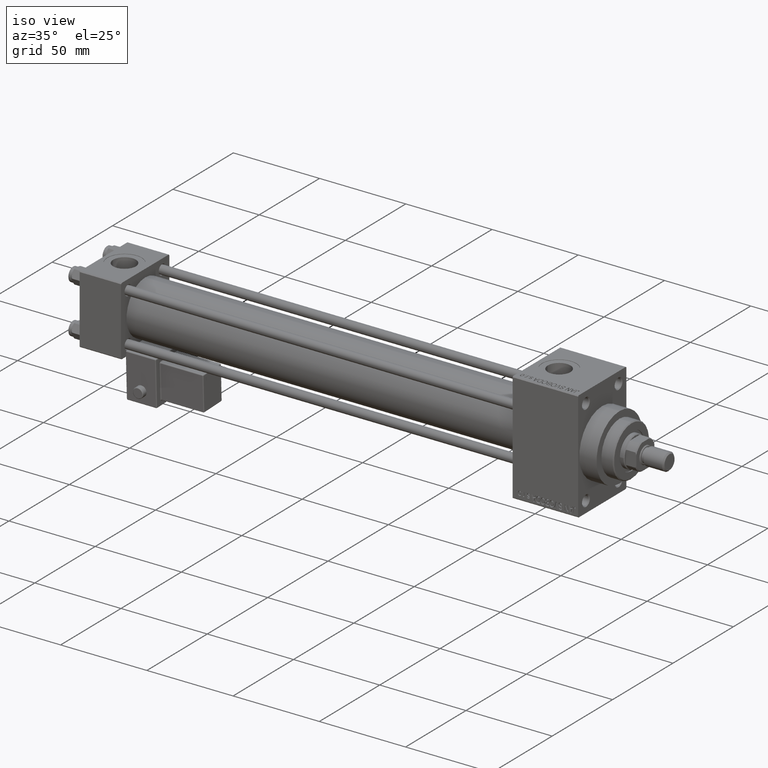
[diagram: clean part render]
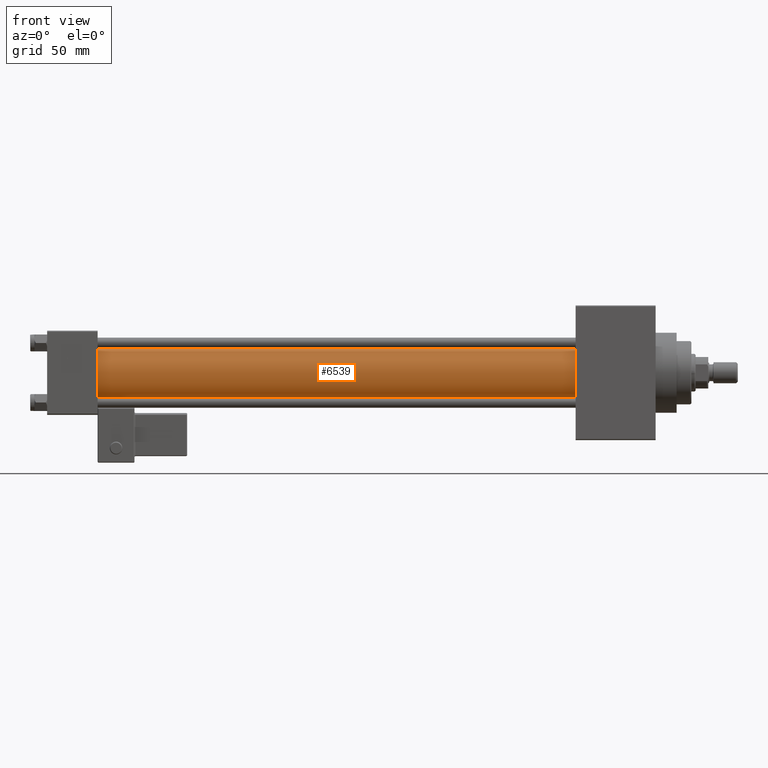
[diagram: tour spotlight — one face highlighted and labeled with its STEP entity id]
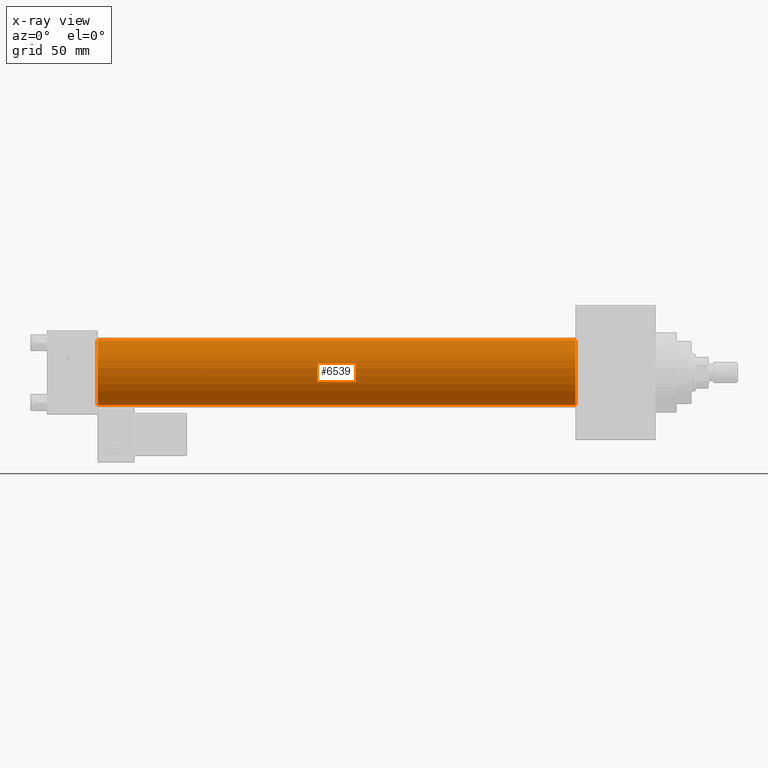
[diagram: x-ray of the same camera — body ghosted, this tour face saturated]
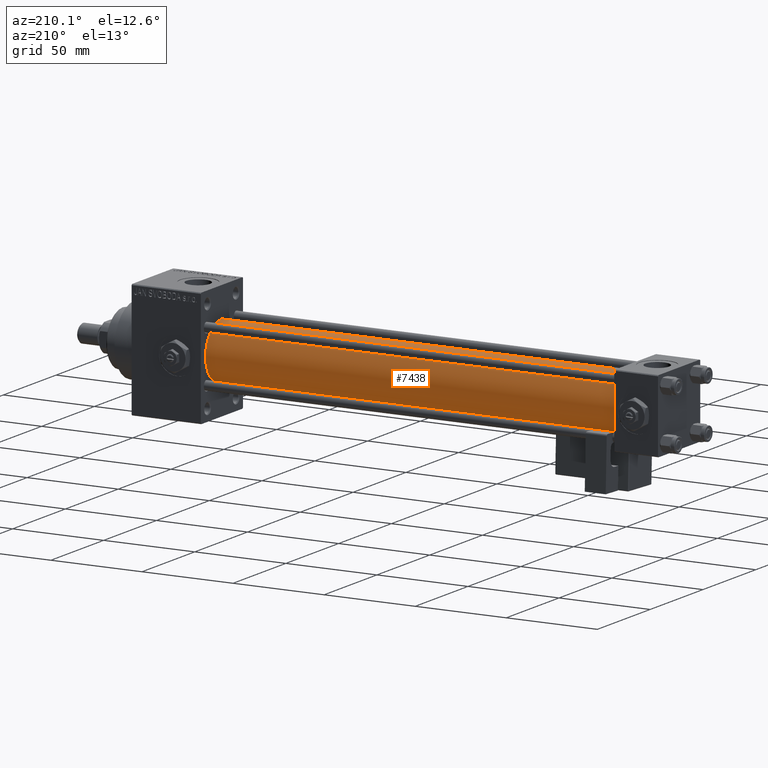
[diagram: tour spotlight — one face highlighted and labeled with its STEP entity id]
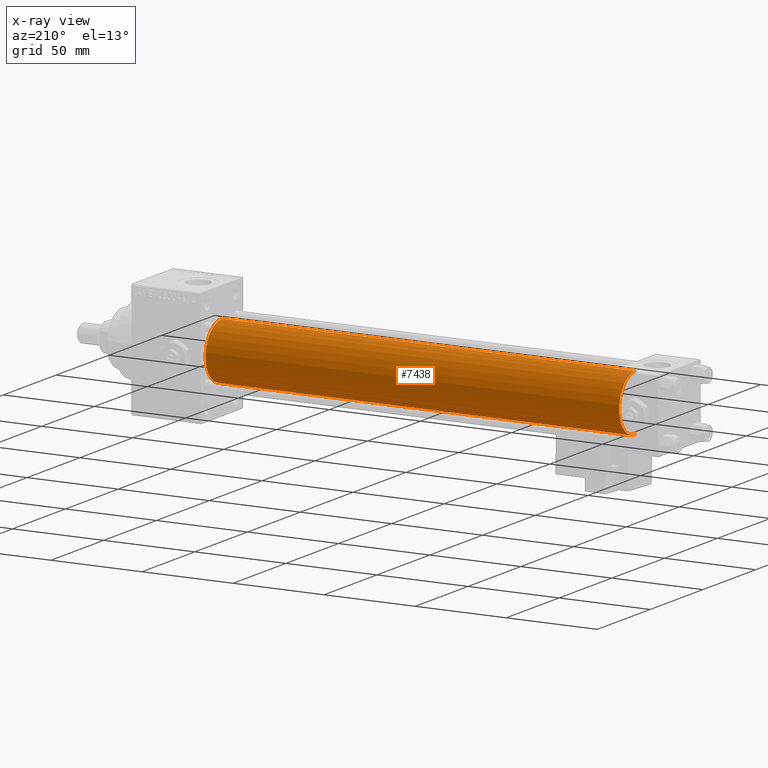
[diagram: x-ray of the same camera — body ghosted, this tour face saturated]
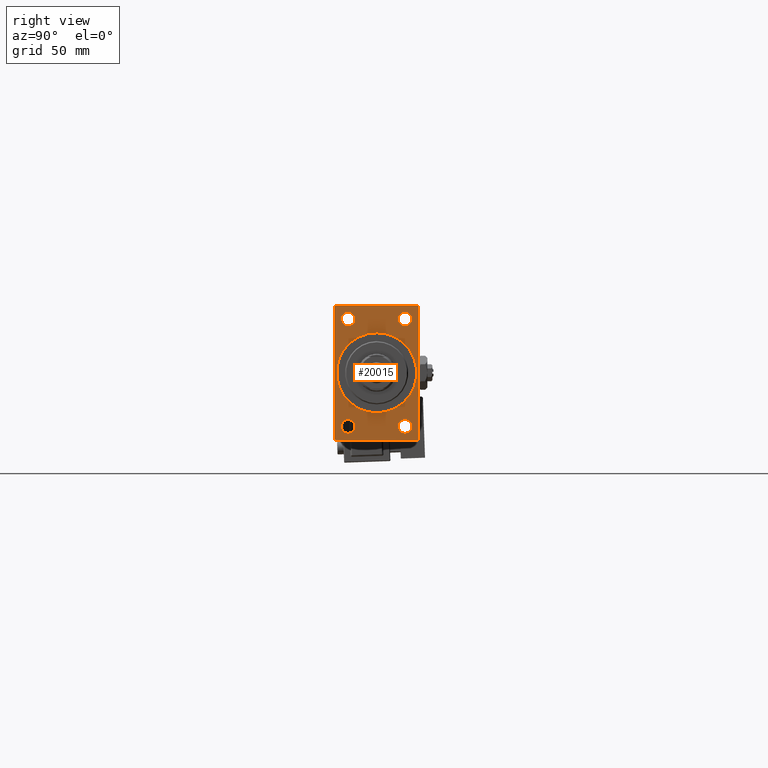
[diagram: tour spotlight — one face highlighted and labeled with its STEP entity id]
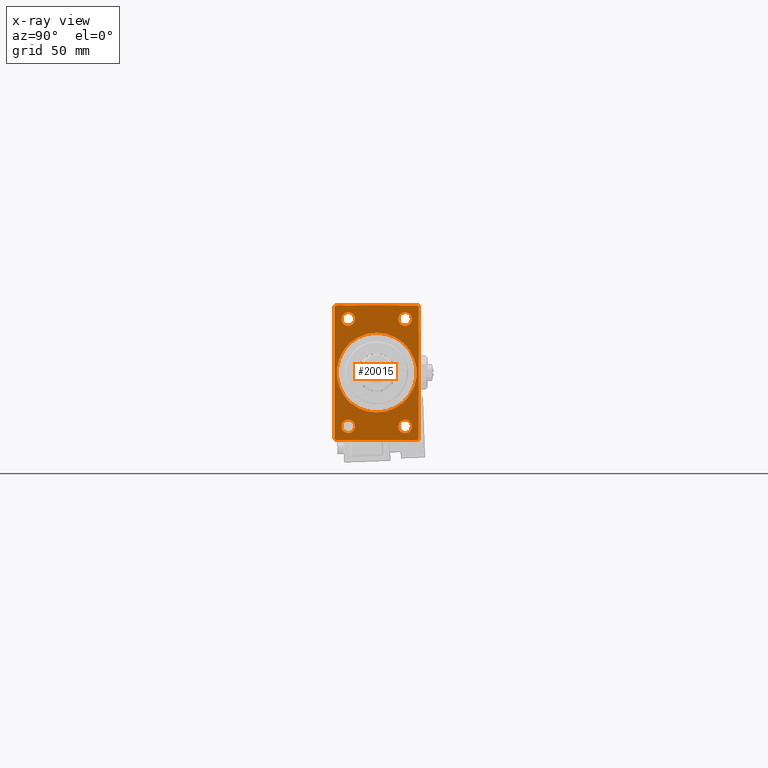
[diagram: x-ray of the same camera — body ghosted, this tour face saturated]
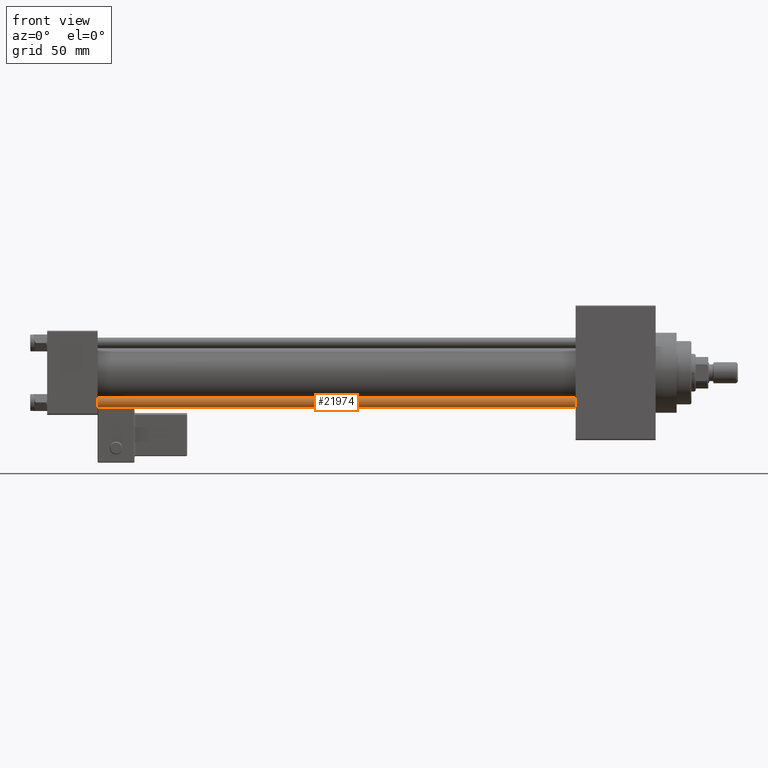
[diagram: tour spotlight — one face highlighted and labeled with its STEP entity id]
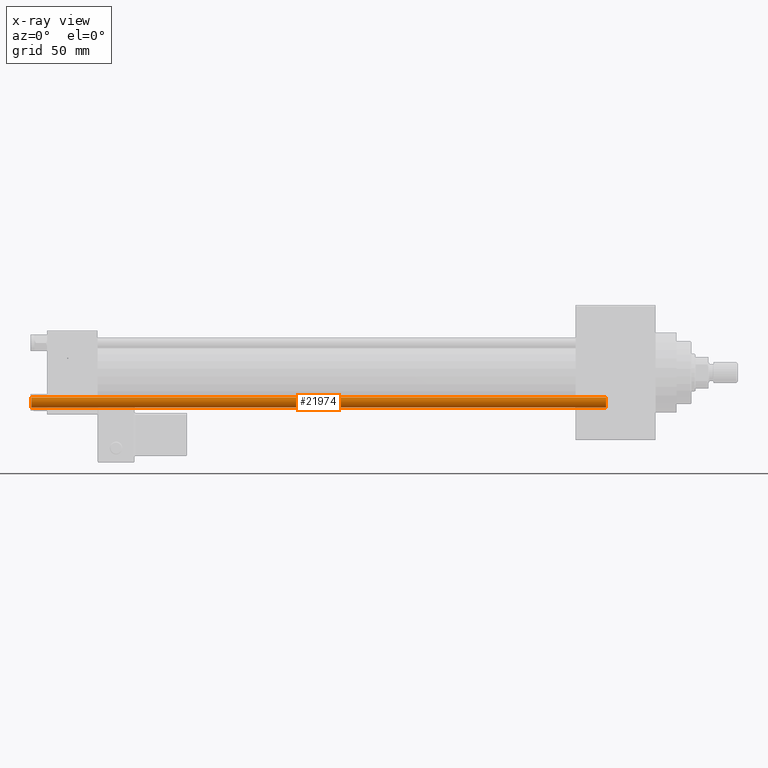
[diagram: x-ray of the same camera — body ghosted, this tour face saturated]
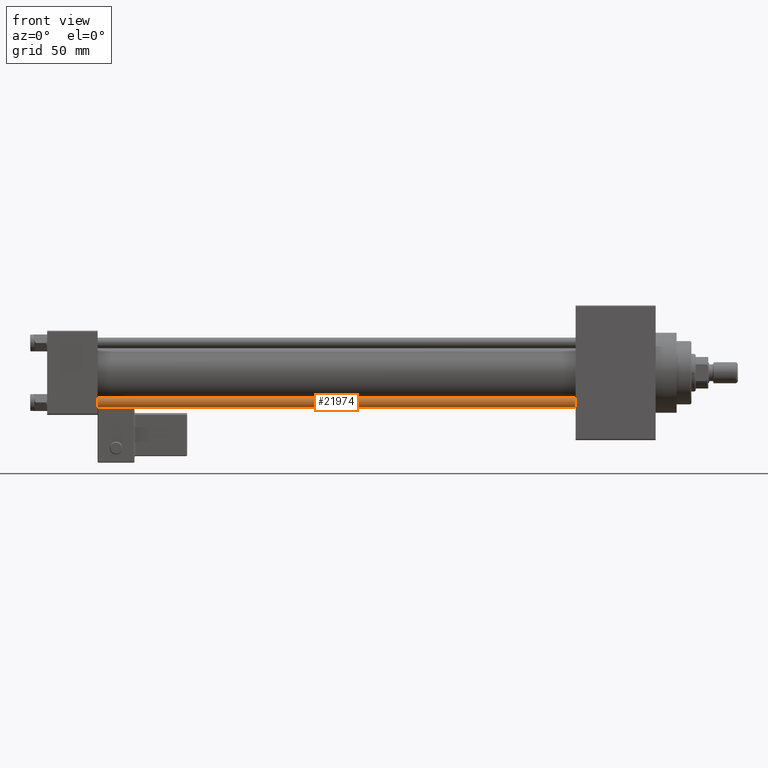
[diagram: tour spotlight — one face highlighted and labeled with its STEP entity id]
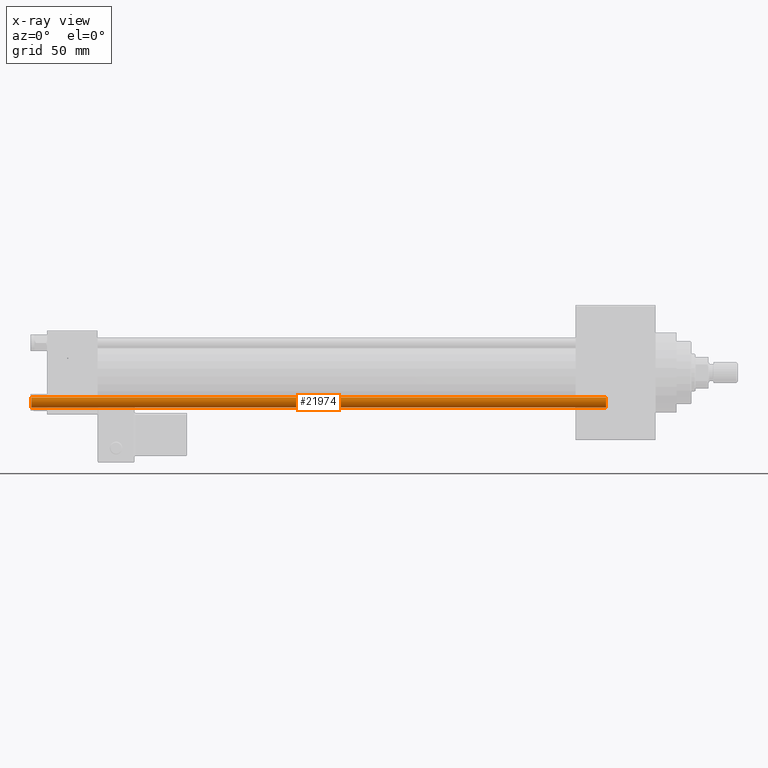
[diagram: x-ray of the same camera — body ghosted, this tour face saturated]
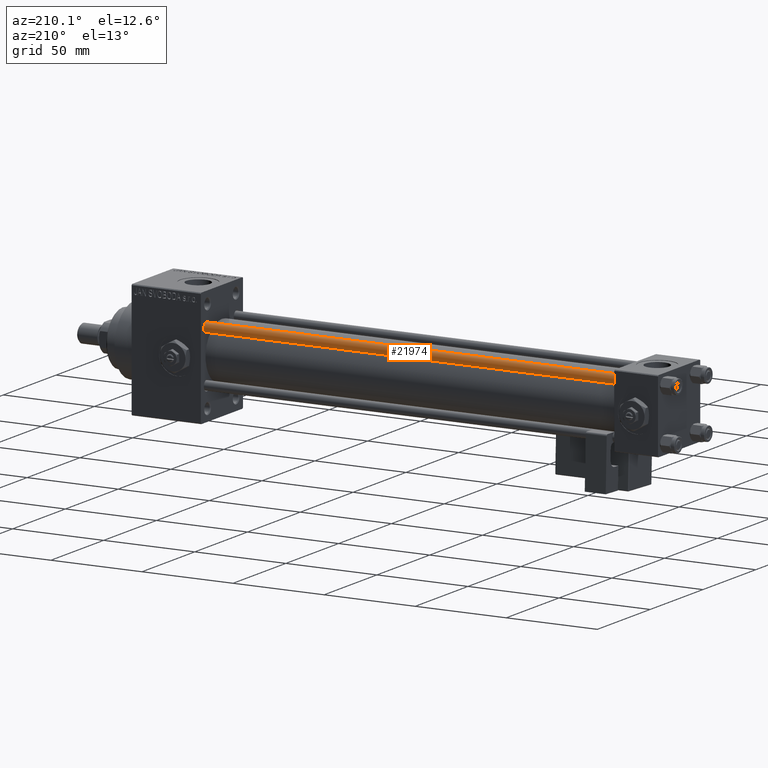
[diagram: tour spotlight — one face highlighted and labeled with its STEP entity id]
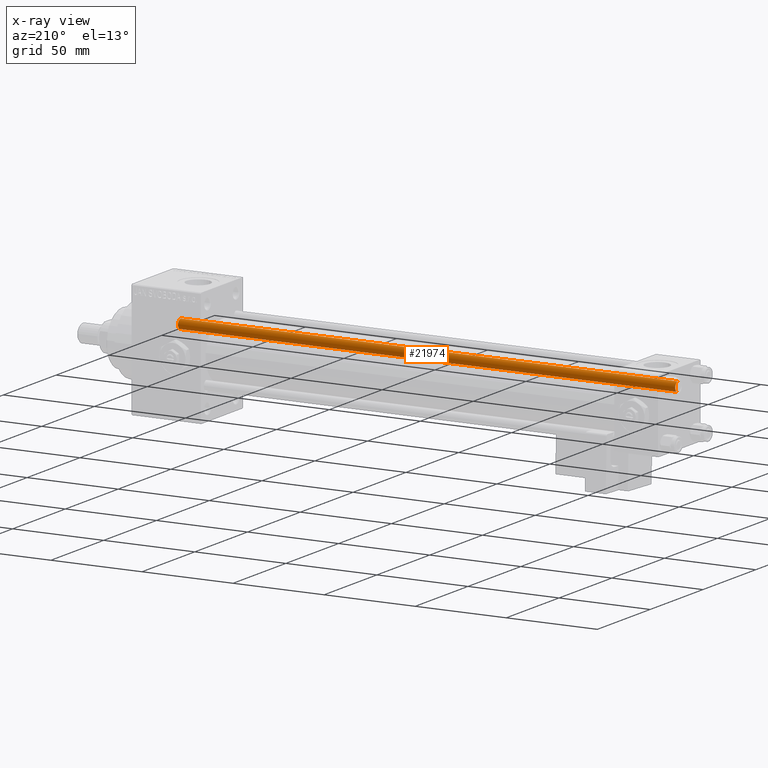
[diagram: x-ray of the same camera — body ghosted, this tour face saturated]
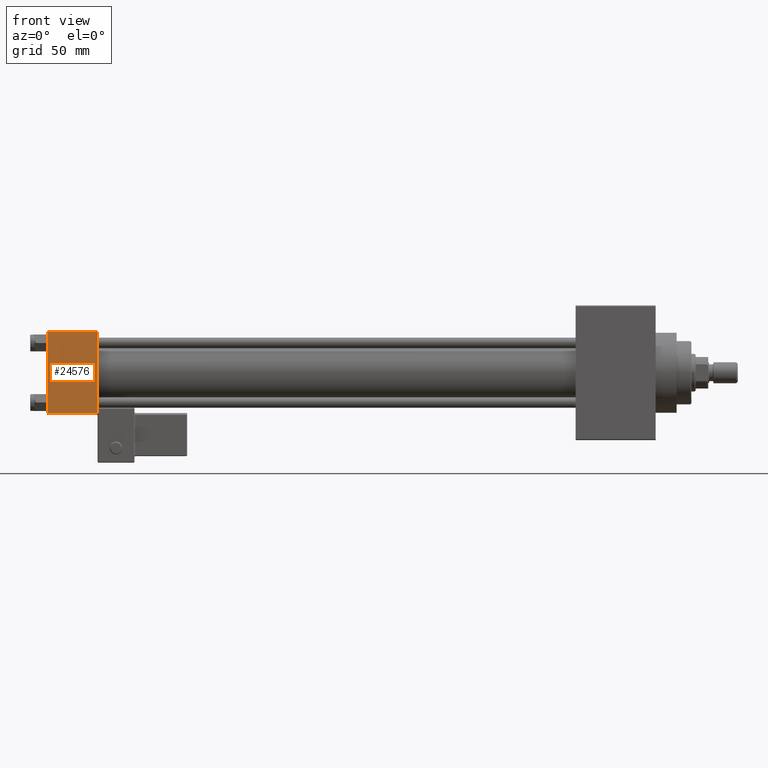
[diagram: tour spotlight — one face highlighted and labeled with its STEP entity id]
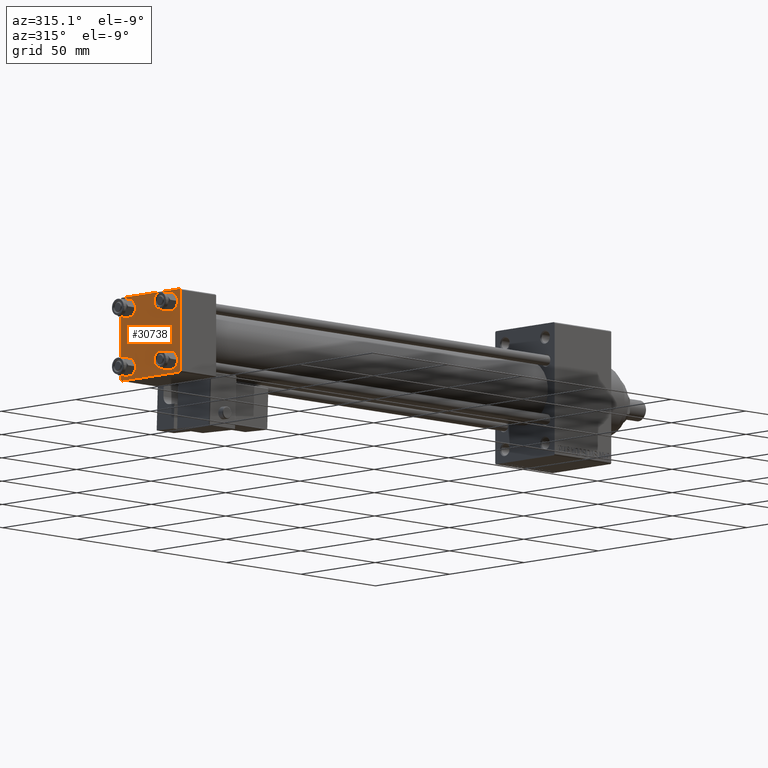
[diagram: tour spotlight — one face highlighted and labeled with its STEP entity id]
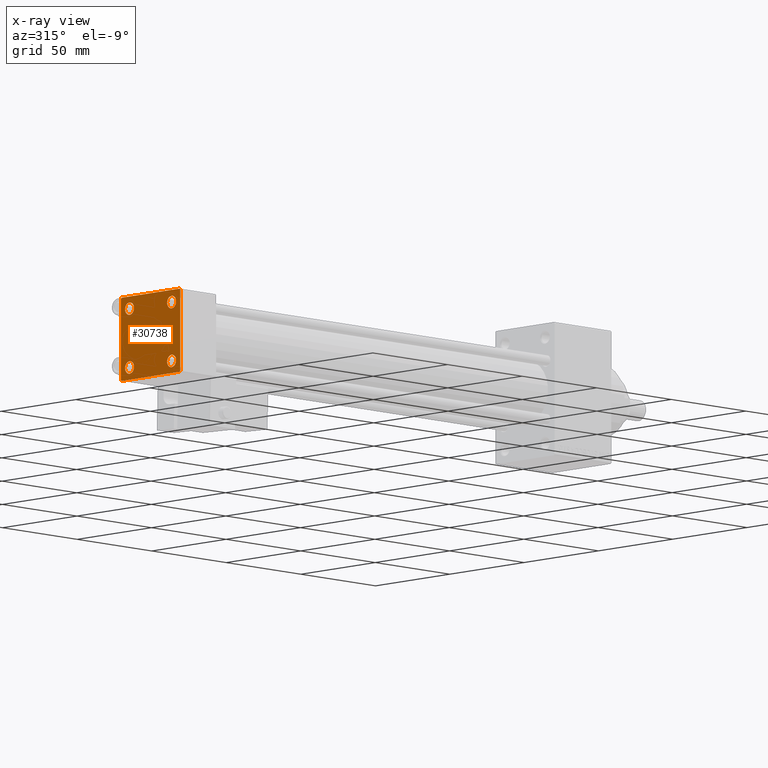
[diagram: x-ray of the same camera — body ghosted, this tour face saturated]
A machine part: a face-by-face anatomy tour. The part has 1291 B-rep faces; the first image is the clean iso view, then the 8 largest visible faces are spotlighted one at a time (largest first), each with its STEP entity span.

Face 1 — front view, entity #6539. An x-ray twin of the same camera follows (body ghosted, this face saturated) — the face is partly hidden behind the body. In plain terms, the highlighted cylindrical surface (edge-blend (fillet) strip) has radius 15.5 mm, axis along (-1, -0, -0).
Definition (entity closure, byte-faithful):
#3190 = VECTOR ( 'NONE', #33726, 1000.000000000000000 ) ;
#3551 = ORIENTED_EDGE ( 'NONE', *, *, #26480, .F. ) ;
#3790 = CIRCLE ( 'NONE', #9606, 15.50000000000000000 ) ;
#5279 = ORIENTED_EDGE ( 'NONE', *, *, #30890, .T. ) ;
#5943 = ORIENTED_EDGE ( 'NONE', *, *, #17332, .T. ) ;
#6539 = ADVANCED_FACE ( 'NONE', ( #19851 ), #36773, .T. ) ;
#8940 = AXIS2_PLACEMENT_3D ( 'NONE', #32481, #48434, #29328 ) ;
#9134 = CARTESIAN_POINT ( 'NONE',  ( 23.99999999999999289, -2.602085213965210642E-15, 0.000000000000000000 ) ) ;
#9606 = AXIS2_PLACEMENT_3D ( 'NONE', #9134, #17728, #12780 ) ;
#12251 = VERTEX_POINT ( 'NONE', #15058 ) ;
#12684 = DIRECTION ( 'NONE',  ( 0.000000000000000000, 0.000000000000000000, 1.000000000000000000 ) ) ;
#12780 = DIRECTION ( 'NONE',  ( 0.000000000000000000, 0.000000000000000000, 1.000000000000000000 ) ) ;
#13961 = CARTESIAN_POINT ( 'NONE',  ( 23.99999999999999289, -7.038826752868134786E-16, -15.50000000000000000 ) ) ;
#15058 = CARTESIAN_POINT ( 'NONE',  ( 251.0000000000000000, -2.602085213965210642E-15, 15.50000000000000000 ) ) ;
#17332 = EDGE_CURVE ( 'NONE', #38606, #26803, #3790, .T. ) ;
#17728 = DIRECTION ( 'NONE',  ( 1.000000000000000000, 0.000000000000000000, 0.000000000000000000 ) ) ;
#18953 = CARTESIAN_POINT ( 'NONE',  ( 251.0000000000000000, -2.602085213965210642E-15, 15.50000000000000000 ) ) ;
#19851 = FACE_OUTER_BOUND ( 'NONE', #49964, .T. ) ;
#22113 = CARTESIAN_POINT ( 'NONE',  ( 251.0000000000000000, -7.038826752868134786E-16, -15.50000000000000000 ) ) ;
#26480 = EDGE_CURVE ( 'NONE', #49427, #26803, #44995, .T. ) ;
#26803 = VERTEX_POINT ( 'NONE', #13961 ) ;
#27288 = AXIS2_PLACEMENT_3D ( 'NONE', #51252, #32587, #12684 ) ;
#29328 = DIRECTION ( 'NONE',  ( 0.000000000000000000, 0.000000000000000000, -1.000000000000000000 ) ) ;
#30890 = EDGE_CURVE ( 'NONE', #12251, #38606, #43304, .T. ) ;
#32481 = CARTESIAN_POINT ( 'NONE',  ( 251.0000000000000000, -2.602085213965210642E-15, 0.000000000000000000 ) ) ;
#32587 = DIRECTION ( 'NONE',  ( -1.000000000000000000, -0.000000000000000000, -0.000000000000000000 ) ) ;
#33726 = DIRECTION ( 'NONE',  ( -1.000000000000000000, -0.000000000000000000, -0.000000000000000000 ) ) ;
#36773 = CYLINDRICAL_SURFACE ( 'NONE', #27288, 15.50000000000000000 ) ;
#38451 = ORIENTED_EDGE ( 'NONE', *, *, #49067, .F. ) ;
#38606 = VERTEX_POINT ( 'NONE', #40480 ) ;
#40480 = CARTESIAN_POINT ( 'NONE',  ( 23.99999999999999289, -2.602085213965210642E-15, 15.50000000000000000 ) ) ;
#43304 = LINE ( 'NONE', #18953, #45941 ) ;
#44995 = LINE ( 'NONE', #49432, #3190 ) ;
#45709 = CIRCLE ( 'NONE', #8940, 15.50000000000000000 ) ;
#45941 = VECTOR ( 'NONE', #46181, 1000.000000000000000 ) ;
#46181 = DIRECTION ( 'NONE',  ( -1.000000000000000000, -0.000000000000000000, -0.000000000000000000 ) ) ;
#48434 = DIRECTION ( 'NONE',  ( 1.000000000000000000, 0.000000000000000000, 0.000000000000000000 ) ) ;
#49067 = EDGE_CURVE ( 'NONE', #12251, #49427, #45709, .T. ) ;
#49427 = VERTEX_POINT ( 'NONE', #22113 ) ;
#49432 = CARTESIAN_POINT ( 'NONE',  ( 251.0000000000000000, -7.038826752868134786E-16, -15.50000000000000000 ) ) ;
#49964 = EDGE_LOOP ( 'NONE', ( #3551, #38451, #5279, #5943 ) ) ;
#51252 = CARTESIAN_POINT ( 'NONE',  ( 251.0000000000000000, -2.602085213965210642E-15, 0.000000000000000000 ) ) ;

Face 2 — auxiliary view, entity #7438. An x-ray twin of the same camera follows (body ghosted, this face saturated) — the face is partly hidden behind the body. In plain terms, the highlighted cylindrical surface (edge-blend (fillet) strip) has radius 15.5 mm, axis along (-1, -0, -0).
Definition (entity closure, byte-faithful):
#2012 = DIRECTION ( 'NONE',  ( 1.000000000000000000, 0.000000000000000000, 0.000000000000000000 ) ) ;
#3190 = VECTOR ( 'NONE', #33726, 1000.000000000000000 ) ;
#6514 = EDGE_LOOP ( 'NONE', ( #13903, #23533, #36644, #23345 ) ) ;
#7438 = ADVANCED_FACE ( 'NONE', ( #35812 ), #51505, .T. ) ;
#11513 = CARTESIAN_POINT ( 'NONE',  ( 23.99999999999999289, -2.602085213965210642E-15, 0.000000000000000000 ) ) ;
#11725 = CARTESIAN_POINT ( 'NONE',  ( 251.0000000000000000, -2.602085213965210642E-15, 0.000000000000000000 ) ) ;
#12251 = VERTEX_POINT ( 'NONE', #15058 ) ;
#12255 = EDGE_CURVE ( 'NONE', #49427, #12251, #49473, .T. ) ;
#13903 = ORIENTED_EDGE ( 'NONE', *, *, #12255, .F. ) ;
#13961 = CARTESIAN_POINT ( 'NONE',  ( 23.99999999999999289, -7.038826752868134786E-16, -15.50000000000000000 ) ) ;
#14742 = CIRCLE ( 'NONE', #51557, 15.50000000000000000 ) ;
#15058 = CARTESIAN_POINT ( 'NONE',  ( 251.0000000000000000, -2.602085213965210642E-15, 15.50000000000000000 ) ) ;
#18953 = CARTESIAN_POINT ( 'NONE',  ( 251.0000000000000000, -2.602085213965210642E-15, 15.50000000000000000 ) ) ;
#22113 = CARTESIAN_POINT ( 'NONE',  ( 251.0000000000000000, -7.038826752868134786E-16, -15.50000000000000000 ) ) ;
#23345 = ORIENTED_EDGE ( 'NONE', *, *, #30890, .F. ) ;
#23533 = ORIENTED_EDGE ( 'NONE', *, *, #26480, .T. ) ;
#23909 = EDGE_CURVE ( 'NONE', #26803, #38606, #14742, .T. ) ;
#26480 = EDGE_CURVE ( 'NONE', #49427, #26803, #44995, .T. ) ;
#26803 = VERTEX_POINT ( 'NONE', #13961 ) ;
#26905 = AXIS2_PLACEMENT_3D ( 'NONE', #30769, #2012, #46726 ) ;
#27941 = DIRECTION ( 'NONE',  ( -1.000000000000000000, -0.000000000000000000, -0.000000000000000000 ) ) ;
#30769 = CARTESIAN_POINT ( 'NONE',  ( 251.0000000000000000, -2.602085213965210642E-15, 0.000000000000000000 ) ) ;
#30890 = EDGE_CURVE ( 'NONE', #12251, #38606, #43304, .T. ) ;
#33726 = DIRECTION ( 'NONE',  ( -1.000000000000000000, -0.000000000000000000, -0.000000000000000000 ) ) ;
#35328 = DIRECTION ( 'NONE',  ( 1.000000000000000000, 0.000000000000000000, 0.000000000000000000 ) ) ;
#35812 = FACE_OUTER_BOUND ( 'NONE', #6514, .T. ) ;
#36644 = ORIENTED_EDGE ( 'NONE', *, *, #23909, .T. ) ;
#38606 = VERTEX_POINT ( 'NONE', #40480 ) ;
#40480 = CARTESIAN_POINT ( 'NONE',  ( 23.99999999999999289, -2.602085213965210642E-15, 15.50000000000000000 ) ) ;
#43089 = AXIS2_PLACEMENT_3D ( 'NONE', #11725, #27941, #43919 ) ;
#43187 = DIRECTION ( 'NONE',  ( 0.000000000000000000, 0.000000000000000000, 1.000000000000000000 ) ) ;
#43304 = LINE ( 'NONE', #18953, #45941 ) ;
#43919 = DIRECTION ( 'NONE',  ( 0.000000000000000000, 0.000000000000000000, 1.000000000000000000 ) ) ;
#44995 = LINE ( 'NONE', #49432, #3190 ) ;
#45941 = VECTOR ( 'NONE', #46181, 1000.000000000000000 ) ;
#46181 = DIRECTION ( 'NONE',  ( -1.000000000000000000, -0.000000000000000000, -0.000000000000000000 ) ) ;
#46726 = DIRECTION ( 'NONE',  ( 0.000000000000000000, 0.000000000000000000, -1.000000000000000000 ) ) ;
#49427 = VERTEX_POINT ( 'NONE', #22113 ) ;
#49432 = CARTESIAN_POINT ( 'NONE',  ( 251.0000000000000000, -7.038826752868134786E-16, -15.50000000000000000 ) ) ;
#49473 = CIRCLE ( 'NONE', #26905, 15.50000000000000000 ) ;
#51505 = CYLINDRICAL_SURFACE ( 'NONE', #43089, 15.50000000000000000 ) ;
#51557 = AXIS2_PLACEMENT_3D ( 'NONE', #11513, #35328, #43187 ) ;

Face 3 — right view, entity #20015. An x-ray twin of the same camera follows (body ghosted, this face saturated) — the face is partly hidden behind the body. In plain terms, the highlighted planar face has unit normal (-1, 0, 0).
Definition (entity closure, byte-faithful):
#89 = DIRECTION ( 'NONE',  ( 0.000000000000000000, 0.000000000000000000, -1.000000000000000000 ) ) ;
#369 = AXIS2_PLACEMENT_3D ( 'NONE', #50858, #22341, #19443 ) ;
#692 = CARTESIAN_POINT ( 'NONE',  ( 289.0000000000000000, -13.50000000000000178, 22.24999999999997158 ) ) ;
#1355 = EDGE_CURVE ( 'NONE', #4342, #47969, #2045, .T. ) ;
#1472 = ORIENTED_EDGE ( 'NONE', *, *, #26791, .F. ) ;
#1581 = CARTESIAN_POINT ( 'NONE',  ( 289.0000000000000000, 0.000000000000000000, 0.000000000000000000 ) ) ;
#1737 = LINE ( 'NONE', #14508, #2072 ) ;
#1776 = EDGE_CURVE ( 'NONE', #46247, #30025, #9581, .T. ) ;
#1781 = CARTESIAN_POINT ( 'NONE',  ( 289.0000000000000000, 19.50000000000000000, 32.00000000000000000 ) ) ;
#2045 = CIRCLE ( 'NONE', #369, 19.00000000000000000 ) ;
#2072 = VECTOR ( 'NONE', #45948, 1000.000000000000000 ) ;
#2087 = FACE_BOUND ( 'NONE', #23303, .T. ) ;
#2228 = AXIS2_PLACEMENT_3D ( 'NONE', #14897, #6282, #42656 ) ;
#2818 = DIRECTION ( 'NONE',  ( -1.000000000000000000, -0.000000000000000000, -0.000000000000000000 ) ) ;
#3150 = VERTEX_POINT ( 'NONE', #18606 ) ;
#3251 = DIRECTION ( 'NONE',  ( 0.000000000000000000, -1.000000000000000000, 0.000000000000000000 ) ) ;
#3722 = VECTOR ( 'NONE', #3251, 1000.000000000000000 ) ;
#3985 = VECTOR ( 'NONE', #8428, 1000.000000000000114 ) ;
#4091 = CARTESIAN_POINT ( 'NONE',  ( 289.0000000000000000, 19.50000000000002842, -32.00000000000000000 ) ) ;
#4342 = VERTEX_POINT ( 'NONE', #30346 ) ;
#4365 = CARTESIAN_POINT ( 'NONE',  ( 289.0000000000000000, 13.49999999999999822, 22.24999999999997513 ) ) ;
#4576 = EDGE_CURVE ( 'NONE', #19832, #47618, #13819, .T. ) ;
#4765 = LINE ( 'NONE', #28308, #22028 ) ;
#4854 = CIRCLE ( 'NONE', #36609, 19.00000000000000000 ) ;
#6252 = DIRECTION ( 'NONE',  ( -1.000000000000000000, -0.000000000000000000, -0.000000000000000000 ) ) ;
#6282 = DIRECTION ( 'NONE',  ( -1.000000000000000000, -0.000000000000000000, -0.000000000000000000 ) ) ;
#6517 = DIRECTION ( 'NONE',  ( 0.000000000000000000, 0.000000000000000000, 1.000000000000000000 ) ) ;
#6623 = ORIENTED_EDGE ( 'NONE', *, *, #4576, .T. ) ;
#8335 = CIRCLE ( 'NONE', #32524, 3.250000000000030642 ) ;
#8428 = DIRECTION ( 'NONE',  ( -0.000000000000000000, -0.7071067811865474617, -0.7071067811865474617 ) ) ;
#8914 = EDGE_CURVE ( 'NONE', #3150, #46977, #50088, .T. ) ;
#9032 = VERTEX_POINT ( 'NONE', #27568 ) ;
#9214 = CIRCLE ( 'NONE', #44323, 3.250000000000030642 ) ;
#9276 = DIRECTION ( 'NONE',  ( 0.000000000000000000, 0.000000000000000000, -1.000000000000000000 ) ) ;
#9408 = PLANE ( 'NONE',  #27157 ) ;
#9581 = CIRCLE ( 'NONE', #21245, 3.250000000000030642 ) ;
#9721 = EDGE_LOOP ( 'NONE', ( #44231, #49125 ) ) ;
#10181 = FACE_BOUND ( 'NONE', #12552, .T. ) ;
#11373 = ORIENTED_EDGE ( 'NONE', *, *, #1355, .F. ) ;
#11465 = VERTEX_POINT ( 'NONE', #30237 ) ;
#12552 = EDGE_LOOP ( 'NONE', ( #43886, #46836 ) ) ;
#12697 = LINE ( 'NONE', #32348, #28364 ) ;
#13105 = ORIENTED_EDGE ( 'NONE', *, *, #42834, .T. ) ;
#13235 = DIRECTION ( 'NONE',  ( 0.000000000000000000, -1.000000000000000000, -1.734723475976807094E-16 ) ) ;
#13580 = VECTOR ( 'NONE', #45811, 1000.000000000000114 ) ;
#13819 = CIRCLE ( 'NONE', #37251, 3.250000000000030642 ) ;
#13899 = EDGE_LOOP ( 'NONE', ( #11373, #1472 ) ) ;
#14320 = CARTESIAN_POINT ( 'NONE',  ( 289.0000000000000000, 13.49999999999999822, 25.50000000000000355 ) ) ;
#14508 = CARTESIAN_POINT ( 'NONE',  ( 289.0000000000000000, 20.00000000000000000, 32.00000000000000000 ) ) ;
#14897 = CARTESIAN_POINT ( 'NONE',  ( 289.0000000000000000, 13.49999999999999822, -25.50000000000000000 ) ) ;
#15905 = CARTESIAN_POINT ( 'NONE',  ( 289.0000000000000000, 0.000000000000000000, 0.000000000000000000 ) ) ;
#15973 = ORIENTED_EDGE ( 'NONE', *, *, #49719, .T. ) ;
#16623 = DIRECTION ( 'NONE',  ( 0.000000000000000000, 0.7071067811865524577, -0.7071067811865425767 ) ) ;
#17018 = CARTESIAN_POINT ( 'NONE',  ( 289.0000000000000000, -20.00000000000000000, 31.49999999999999289 ) ) ;
#17021 = CIRCLE ( 'NONE', #39635, 3.250000000000030642 ) ;
#17090 = EDGE_CURVE ( 'NONE', #3150, #47449, #1737, .T. ) ;
#17245 = FACE_BOUND ( 'NONE', #13899, .T. ) ;
#17747 = CARTESIAN_POINT ( 'NONE',  ( 289.0000000000000000, -13.50000000000000178, 25.50000000000000355 ) ) ;
#17756 = EDGE_CURVE ( 'NONE', #46977, #24415, #45169, .T. ) ;
#17894 = CARTESIAN_POINT ( 'NONE',  ( 289.0000000000000000, 19.50000000000000000, 32.00000000000000000 ) ) ;
#18021 = FACE_OUTER_BOUND ( 'NONE', #42260, .T. ) ;
#18458 = DIRECTION ( 'NONE',  ( 0.000000000000000000, 0.000000000000000000, 1.000000000000000000 ) ) ;
#18606 = CARTESIAN_POINT ( 'NONE',  ( 289.0000000000000000, 20.00000000000000000, 31.50000000000002842 ) ) ;
#18900 = AXIS2_PLACEMENT_3D ( 'NONE', #38666, #2818, #30806 ) ;
#19302 = ORIENTED_EDGE ( 'NONE', *, *, #37138, .T. ) ;
#19443 = DIRECTION ( 'NONE',  ( 0.000000000000000000, 0.000000000000000000, -1.000000000000000000 ) ) ;
#19540 = CIRCLE ( 'NONE', #26211, 3.250000000000030642 ) ;
#19773 = CIRCLE ( 'NONE', #2228, 3.250000000000030642 ) ;
#19832 = VERTEX_POINT ( 'NONE', #46855 ) ;
#20015 = ADVANCED_FACE ( 'NONE', ( #2087, #29292, #42103, #10181, #17245, #18021 ), #9408, .F. ) ;
#20081 = ORIENTED_EDGE ( 'NONE', *, *, #30818, .T. ) ;
#20270 = DIRECTION ( 'NONE',  ( 0.000000000000000000, 0.000000000000000000, 1.000000000000000000 ) ) ;
#20561 = CARTESIAN_POINT ( 'NONE',  ( 289.0000000000000000, 20.00000000000000000, 32.00000000000000000 ) ) ;
#21245 = AXIS2_PLACEMENT_3D ( 'NONE', #44882, #40959, #20270 ) ;
#21459 = CARTESIAN_POINT ( 'NONE',  ( 289.0000000000000000, 20.00000000000000000, -31.50000000000002842 ) ) ;
#21797 = ORIENTED_EDGE ( 'NONE', *, *, #17756, .T. ) ;
#22028 = VECTOR ( 'NONE', #89, 1000.000000000000000 ) ;
#22341 = DIRECTION ( 'NONE',  ( 1.000000000000000000, 0.000000000000000000, 0.000000000000000000 ) ) ;
#23303 = EDGE_LOOP ( 'NONE', ( #13105, #6623 ) ) ;
#23829 = VERTEX_POINT ( 'NONE', #4091 ) ;
#24177 = ORIENTED_EDGE ( 'NONE', *, *, #1776, .T. ) ;
#24415 = VERTEX_POINT ( 'NONE', #49872 ) ;
#24811 = CARTESIAN_POINT ( 'NONE',  ( 289.0000000000000000, 13.49999999999999822, -22.24999999999996803 ) ) ;
#26211 = AXIS2_PLACEMENT_3D ( 'NONE', #38111, #33659, #26581 ) ;
#26581 = DIRECTION ( 'NONE',  ( 0.000000000000000000, 0.000000000000000000, 1.000000000000000000 ) ) ;
#26717 = ORIENTED_EDGE ( 'NONE', *, *, #44180, .F. ) ;
#26734 = ORIENTED_EDGE ( 'NONE', *, *, #17090, .F. ) ;
#26791 = EDGE_CURVE ( 'NONE', #47969, #4342, #4854, .T. ) ;
#27157 = AXIS2_PLACEMENT_3D ( 'NONE', #1581, #37666, #30072 ) ;
#27568 = CARTESIAN_POINT ( 'NONE',  ( 289.0000000000000000, -19.49999999999997158, -32.00000000000000000 ) ) ;
#28308 = CARTESIAN_POINT ( 'NONE',  ( 289.0000000000000000, -20.00000000000000000, 31.99999999999999289 ) ) ;
#28364 = VECTOR ( 'NONE', #16623, 1000.000000000000114 ) ;
#29221 = EDGE_CURVE ( 'NONE', #29506, #31761, #8335, .T. ) ;
#29292 = FACE_BOUND ( 'NONE', #47123, .T. ) ;
#29349 = CARTESIAN_POINT ( 'NONE',  ( 289.0000000000000000, 13.49999999999999822, 28.75000000000003553 ) ) ;
#29506 = VERTEX_POINT ( 'NONE', #29349 ) ;
#29645 = CARTESIAN_POINT ( 'NONE',  ( 289.0000000000000000, -20.00000000000000000, 31.49999999999999289 ) ) ;
#30025 = VERTEX_POINT ( 'NONE', #51591 ) ;
#30043 = DIRECTION ( 'NONE',  ( 0.000000000000000000, 0.000000000000000000, 1.000000000000000000 ) ) ;
#30072 = DIRECTION ( 'NONE',  ( -0.000000000000000000, 0.000000000000000000, 1.000000000000000000 ) ) ;
#30237 = CARTESIAN_POINT ( 'NONE',  ( 289.0000000000000000, 13.49999999999999822, -28.75000000000002842 ) ) ;
#30346 = CARTESIAN_POINT ( 'NONE',  ( 289.0000000000000000, 0.000000000000000000, 19.00000000000000000 ) ) ;
#30534 = ORIENTED_EDGE ( 'NONE', *, *, #8914, .T. ) ;
#30765 = CARTESIAN_POINT ( 'NONE',  ( 289.0000000000000000, 13.49999999999999822, 25.50000000000000355 ) ) ;
#30806 = DIRECTION ( 'NONE',  ( 0.000000000000000000, 0.000000000000000000, 1.000000000000000000 ) ) ;
#30818 = EDGE_CURVE ( 'NONE', #44856, #9032, #12697, .T. ) ;
#30970 = CARTESIAN_POINT ( 'NONE',  ( 289.0000000000000000, 20.00000000000000000, -32.00000000000000000 ) ) ;
#31529 = EDGE_CURVE ( 'NONE', #31761, #29506, #9214, .T. ) ;
#31761 = VERTEX_POINT ( 'NONE', #4365 ) ;
#32201 = VERTEX_POINT ( 'NONE', #29645 ) ;
#32348 = CARTESIAN_POINT ( 'NONE',  ( 289.0000000000000000, -19.49999999999997158, -32.00000000000000000 ) ) ;
#32524 = AXIS2_PLACEMENT_3D ( 'NONE', #30765, #38372, #18458 ) ;
#33452 = DIRECTION ( 'NONE',  ( -1.000000000000000000, -0.000000000000000000, -0.000000000000000000 ) ) ;
#33659 = DIRECTION ( 'NONE',  ( -1.000000000000000000, -0.000000000000000000, -0.000000000000000000 ) ) ;
#34027 = LINE ( 'NONE', #21459, #13580 ) ;
#34619 = ORIENTED_EDGE ( 'NONE', *, *, #48420, .T. ) ;
#34993 = CARTESIAN_POINT ( 'NONE',  ( 289.0000000000000000, 20.00000000000000000, -31.50000000000002842 ) ) ;
#35160 = LINE ( 'NONE', #30970, #3722 ) ;
#36609 = AXIS2_PLACEMENT_3D ( 'NONE', #15905, #48083, #9276 ) ;
#37138 = EDGE_CURVE ( 'NONE', #23829, #47449, #34027, .T. ) ;
#37160 = CARTESIAN_POINT ( 'NONE',  ( 289.0000000000000000, 2.326828918379970970E-15, -19.00000000000000000 ) ) ;
#37251 = AXIS2_PLACEMENT_3D ( 'NONE', #17747, #6252, #6517 ) ;
#37299 = VERTEX_POINT ( 'NONE', #24811 ) ;
#37666 = DIRECTION ( 'NONE',  ( -1.000000000000000000, 0.000000000000000000, -0.000000000000000000 ) ) ;
#38111 = CARTESIAN_POINT ( 'NONE',  ( 289.0000000000000000, -13.50000000000000178, 25.50000000000000355 ) ) ;
#38372 = DIRECTION ( 'NONE',  ( -1.000000000000000000, -0.000000000000000000, -0.000000000000000000 ) ) ;
#38666 = CARTESIAN_POINT ( 'NONE',  ( 289.0000000000000000, -13.50000000000000533, -25.49999999999999645 ) ) ;
#39115 = EDGE_CURVE ( 'NONE', #11465, #37299, #17021, .T. ) ;
#39438 = DIRECTION ( 'NONE',  ( 0.000000000000000000, 0.000000000000000000, 1.000000000000000000 ) ) ;
#39635 = AXIS2_PLACEMENT_3D ( 'NONE', #48292, #44372, #39438 ) ;
#40959 = DIRECTION ( 'NONE',  ( -1.000000000000000000, -0.000000000000000000, -0.000000000000000000 ) ) ;
#41117 = LINE ( 'NONE', #17018, #3985 ) ;
#42103 = FACE_BOUND ( 'NONE', #9721, .T. ) ;
#42260 = EDGE_LOOP ( 'NONE', ( #44774, #20081, #26717, #19302, #26734, #30534, #21797, #15973 ) ) ;
#42403 = EDGE_CURVE ( 'NONE', #32201, #44856, #4765, .T. ) ;
#42427 = CARTESIAN_POINT ( 'NONE',  ( 289.0000000000000000, -20.00000000000000000, -31.49999999999997868 ) ) ;
#42656 = DIRECTION ( 'NONE',  ( 0.000000000000000000, 0.000000000000000000, 1.000000000000000000 ) ) ;
#42834 = EDGE_CURVE ( 'NONE', #47618, #19832, #19540, .T. ) ;
#43886 = ORIENTED_EDGE ( 'NONE', *, *, #31529, .T. ) ;
#44180 = EDGE_CURVE ( 'NONE', #23829, #9032, #35160, .T. ) ;
#44231 = ORIENTED_EDGE ( 'NONE', *, *, #39115, .T. ) ;
#44323 = AXIS2_PLACEMENT_3D ( 'NONE', #14320, #33452, #30043 ) ;
#44372 = DIRECTION ( 'NONE',  ( -1.000000000000000000, -0.000000000000000000, -0.000000000000000000 ) ) ;
#44774 = ORIENTED_EDGE ( 'NONE', *, *, #42403, .T. ) ;
#44856 = VERTEX_POINT ( 'NONE', #42427 ) ;
#44882 = CARTESIAN_POINT ( 'NONE',  ( 289.0000000000000000, -13.50000000000000533, -25.49999999999999645 ) ) ;
#45169 = LINE ( 'NONE', #20561, #51392 ) ;
#45658 = DIRECTION ( 'NONE',  ( 0.000000000000000000, -0.7071067811865671127, 0.7071067811865279218 ) ) ;
#45811 = DIRECTION ( 'NONE',  ( -0.000000000000000000, 0.7071067811865474617, 0.7071067811865474617 ) ) ;
#45924 = CARTESIAN_POINT ( 'NONE',  ( 289.0000000000000000, -13.50000000000000533, -22.24999999999996447 ) ) ;
#45948 = DIRECTION ( 'NONE',  ( 0.000000000000000000, 0.000000000000000000, -1.000000000000000000 ) ) ;
#46247 = VERTEX_POINT ( 'NONE', #45924 ) ;
#46836 = ORIENTED_EDGE ( 'NONE', *, *, #29221, .T. ) ;
#46855 = CARTESIAN_POINT ( 'NONE',  ( 289.0000000000000000, -13.50000000000000178, 28.75000000000003197 ) ) ;
#46977 = VERTEX_POINT ( 'NONE', #1781 ) ;
#47123 = EDGE_LOOP ( 'NONE', ( #34619, #24177 ) ) ;
#47348 = VECTOR ( 'NONE', #45658, 1000.000000000000000 ) ;
#47449 = VERTEX_POINT ( 'NONE', #34993 ) ;
#47618 = VERTEX_POINT ( 'NONE', #692 ) ;
#47969 = VERTEX_POINT ( 'NONE', #37160 ) ;
#48054 = EDGE_CURVE ( 'NONE', #37299, #11465, #19773, .T. ) ;
#48083 = DIRECTION ( 'NONE',  ( 1.000000000000000000, 0.000000000000000000, 0.000000000000000000 ) ) ;
#48152 = CIRCLE ( 'NONE', #18900, 3.250000000000030642 ) ;
#48292 = CARTESIAN_POINT ( 'NONE',  ( 289.0000000000000000, 13.49999999999999822, -25.50000000000000000 ) ) ;
#48420 = EDGE_CURVE ( 'NONE', #30025, #46247, #48152, .T. ) ;
#49125 = ORIENTED_EDGE ( 'NONE', *, *, #48054, .T. ) ;
#49719 = EDGE_CURVE ( 'NONE', #24415, #32201, #41117, .T. ) ;
#49872 = CARTESIAN_POINT ( 'NONE',  ( 289.0000000000000000, -19.50000000000000000, 31.99999999999999289 ) ) ;
#50088 = LINE ( 'NONE', #17894, #47348 ) ;
#50858 = CARTESIAN_POINT ( 'NONE',  ( 289.0000000000000000, 0.000000000000000000, 0.000000000000000000 ) ) ;
#51392 = VECTOR ( 'NONE', #13235, 1000.000000000000000 ) ;
#51591 = CARTESIAN_POINT ( 'NONE',  ( 289.0000000000000000, -13.50000000000000533, -28.75000000000002487 ) ) ;

Face 4 — front view, entity #21974. An x-ray twin of the same camera follows (body ghosted, this face saturated) — the face is partly hidden behind the body. In plain terms, the highlighted cylindrical surface (edge-blend (fillet) strip) has radius 2.5 mm, axis along (1, 0, 0).
Definition (entity closure, byte-faithful):
#1295 = VECTOR ( 'NONE', #13835, 1000.000000000000000 ) ;
#1872 = CARTESIAN_POINT ( 'NONE',  ( 2.500000000000000000, 3.061616997868383141E-16, 0.5000000000000004441 ) ) ;
#5278 = DIRECTION ( 'NONE',  ( 0.000000000000000000, 0.000000000000000000, -1.000000000000000000 ) ) ;
#5687 = CARTESIAN_POINT ( 'NONE',  ( 0.000000000000000000, 0.000000000000000000, 0.5000000000000004441 ) ) ;
#5754 = LINE ( 'NONE', #21694, #1295 ) ;
#5946 = CYLINDRICAL_SURFACE ( 'NONE', #21348, 2.500000000000000000 ) ;
#6228 = DIRECTION ( 'NONE',  ( -0.000000000000000000, -0.000000000000000000, -1.000000000000000000 ) ) ;
#6722 = DIRECTION ( 'NONE',  ( -0.000000000000000000, -0.000000000000000000, -1.000000000000000000 ) ) ;
#6979 = FACE_OUTER_BOUND ( 'NONE', #20367, .T. ) ;
#13835 = DIRECTION ( 'NONE',  ( -0.000000000000000000, -0.000000000000000000, -1.000000000000000000 ) ) ;
#14091 = ORIENTED_EDGE ( 'NONE', *, *, #19750, .T. ) ;
#14682 = ORIENTED_EDGE ( 'NONE', *, *, #51188, .T. ) ;
#16758 = EDGE_CURVE ( 'NONE', #34083, #25060, #49923, .T. ) ;
#18080 = CARTESIAN_POINT ( 'NONE',  ( 0.000000000000000000, 0.000000000000000000, 273.5000000000000000 ) ) ;
#19405 = ORIENTED_EDGE ( 'NONE', *, *, #46002, .F. ) ;
#19714 = CARTESIAN_POINT ( 'NONE',  ( 0.000000000000000000, 0.000000000000000000, 274.0000000000000000 ) ) ;
#19750 = EDGE_CURVE ( 'NONE', #48553, #34083, #45609, .T. ) ;
#20367 = EDGE_LOOP ( 'NONE', ( #14091, #50973, #14682, #19405 ) ) ;
#20675 = AXIS2_PLACEMENT_3D ( 'NONE', #5687, #33667, #45721 ) ;
#21220 = DIRECTION ( 'NONE',  ( 1.000000000000000000, 0.000000000000000000, 0.000000000000000000 ) ) ;
#21348 = AXIS2_PLACEMENT_3D ( 'NONE', #19714, #6722, #26072 ) ;
#21694 = CARTESIAN_POINT ( 'NONE',  ( -2.500000000000000000, 0.000000000000000000, 274.0000000000000000 ) ) ;
#21974 = ADVANCED_FACE ( 'NONE', ( #6979 ), #5946, .T. ) ;
#23036 = AXIS2_PLACEMENT_3D ( 'NONE', #18080, #5278, #21220 ) ;
#25060 = VERTEX_POINT ( 'NONE', #1872 ) ;
#26072 = DIRECTION ( 'NONE',  ( -1.000000000000000000, 0.000000000000000000, 0.000000000000000000 ) ) ;
#33667 = DIRECTION ( 'NONE',  ( -0.000000000000000000, -0.000000000000000000, 1.000000000000000000 ) ) ;
#34083 = VERTEX_POINT ( 'NONE', #46959 ) ;
#37157 = VECTOR ( 'NONE', #6228, 1000.000000000000000 ) ;
#43274 = CIRCLE ( 'NONE', #20675, 2.500000000000000000 ) ;
#44046 = CARTESIAN_POINT ( 'NONE',  ( -2.500000000000000000, 0.000000000000000000, 0.5000000000000004441 ) ) ;
#45609 = CIRCLE ( 'NONE', #23036, 2.500000000000000000 ) ;
#45721 = DIRECTION ( 'NONE',  ( 1.000000000000000000, 0.000000000000000000, 0.000000000000000000 ) ) ;
#46002 = EDGE_CURVE ( 'NONE', #48553, #50575, #5754, .T. ) ;
#46251 = CARTESIAN_POINT ( 'NONE',  ( 2.500000000000000000, 3.061616997868383141E-16, 274.0000000000000000 ) ) ;
#46959 = CARTESIAN_POINT ( 'NONE',  ( 2.500000000000000000, 3.061616997868383141E-16, 273.5000000000000000 ) ) ;
#48553 = VERTEX_POINT ( 'NONE', #51731 ) ;
#49923 = LINE ( 'NONE', #46251, #37157 ) ;
#50575 = VERTEX_POINT ( 'NONE', #44046 ) ;
#50973 = ORIENTED_EDGE ( 'NONE', *, *, #16758, .T. ) ;
#51188 = EDGE_CURVE ( 'NONE', #25060, #50575, #43274, .T. ) ;
#51731 = CARTESIAN_POINT ( 'NONE',  ( -2.500000000000000000, 0.000000000000000000, 273.5000000000000000 ) ) ;

Face 5 — front view, entity #21974. An x-ray twin of the same camera follows (body ghosted, this face saturated) — the face is partly hidden behind the body. In plain terms, the highlighted cylindrical surface (edge-blend (fillet) strip) has radius 2.5 mm, axis along (-1, 0, 0).
Definition (entity closure, byte-faithful):
#1295 = VECTOR ( 'NONE', #13835, 1000.000000000000000 ) ;
#1872 = CARTESIAN_POINT ( 'NONE',  ( 2.500000000000000000, 3.061616997868383141E-16, 0.5000000000000004441 ) ) ;
#5278 = DIRECTION ( 'NONE',  ( 0.000000000000000000, 0.000000000000000000, -1.000000000000000000 ) ) ;
#5687 = CARTESIAN_POINT ( 'NONE',  ( 0.000000000000000000, 0.000000000000000000, 0.5000000000000004441 ) ) ;
#5754 = LINE ( 'NONE', #21694, #1295 ) ;
#5946 = CYLINDRICAL_SURFACE ( 'NONE', #21348, 2.500000000000000000 ) ;
#6228 = DIRECTION ( 'NONE',  ( -0.000000000000000000, -0.000000000000000000, -1.000000000000000000 ) ) ;
#6722 = DIRECTION ( 'NONE',  ( -0.000000000000000000, -0.000000000000000000, -1.000000000000000000 ) ) ;
#6979 = FACE_OUTER_BOUND ( 'NONE', #20367, .T. ) ;
#13835 = DIRECTION ( 'NONE',  ( -0.000000000000000000, -0.000000000000000000, -1.000000000000000000 ) ) ;
#14091 = ORIENTED_EDGE ( 'NONE', *, *, #19750, .T. ) ;
#14682 = ORIENTED_EDGE ( 'NONE', *, *, #51188, .T. ) ;
#16758 = EDGE_CURVE ( 'NONE', #34083, #25060, #49923, .T. ) ;
#18080 = CARTESIAN_POINT ( 'NONE',  ( 0.000000000000000000, 0.000000000000000000, 273.5000000000000000 ) ) ;
#19405 = ORIENTED_EDGE ( 'NONE', *, *, #46002, .F. ) ;
#19714 = CARTESIAN_POINT ( 'NONE',  ( 0.000000000000000000, 0.000000000000000000, 274.0000000000000000 ) ) ;
#19750 = EDGE_CURVE ( 'NONE', #48553, #34083, #45609, .T. ) ;
#20367 = EDGE_LOOP ( 'NONE', ( #14091, #50973, #14682, #19405 ) ) ;
#20675 = AXIS2_PLACEMENT_3D ( 'NONE', #5687, #33667, #45721 ) ;
#21220 = DIRECTION ( 'NONE',  ( 1.000000000000000000, 0.000000000000000000, 0.000000000000000000 ) ) ;
#21348 = AXIS2_PLACEMENT_3D ( 'NONE', #19714, #6722, #26072 ) ;
#21694 = CARTESIAN_POINT ( 'NONE',  ( -2.500000000000000000, 0.000000000000000000, 274.0000000000000000 ) ) ;
#21974 = ADVANCED_FACE ( 'NONE', ( #6979 ), #5946, .T. ) ;
#23036 = AXIS2_PLACEMENT_3D ( 'NONE', #18080, #5278, #21220 ) ;
#25060 = VERTEX_POINT ( 'NONE', #1872 ) ;
#26072 = DIRECTION ( 'NONE',  ( -1.000000000000000000, 0.000000000000000000, 0.000000000000000000 ) ) ;
#33667 = DIRECTION ( 'NONE',  ( -0.000000000000000000, -0.000000000000000000, 1.000000000000000000 ) ) ;
#34083 = VERTEX_POINT ( 'NONE', #46959 ) ;
#37157 = VECTOR ( 'NONE', #6228, 1000.000000000000000 ) ;
#43274 = CIRCLE ( 'NONE', #20675, 2.500000000000000000 ) ;
#44046 = CARTESIAN_POINT ( 'NONE',  ( -2.500000000000000000, 0.000000000000000000, 0.5000000000000004441 ) ) ;
#45609 = CIRCLE ( 'NONE', #23036, 2.500000000000000000 ) ;
#45721 = DIRECTION ( 'NONE',  ( 1.000000000000000000, 0.000000000000000000, 0.000000000000000000 ) ) ;
#46002 = EDGE_CURVE ( 'NONE', #48553, #50575, #5754, .T. ) ;
#46251 = CARTESIAN_POINT ( 'NONE',  ( 2.500000000000000000, 3.061616997868383141E-16, 274.0000000000000000 ) ) ;
#46959 = CARTESIAN_POINT ( 'NONE',  ( 2.500000000000000000, 3.061616997868383141E-16, 273.5000000000000000 ) ) ;
#48553 = VERTEX_POINT ( 'NONE', #51731 ) ;
#49923 = LINE ( 'NONE', #46251, #37157 ) ;
#50575 = VERTEX_POINT ( 'NONE', #44046 ) ;
#50973 = ORIENTED_EDGE ( 'NONE', *, *, #16758, .T. ) ;
#51188 = EDGE_CURVE ( 'NONE', #25060, #50575, #43274, .T. ) ;
#51731 = CARTESIAN_POINT ( 'NONE',  ( -2.500000000000000000, 0.000000000000000000, 273.5000000000000000 ) ) ;

Face 6 — auxiliary view, entity #21974. An x-ray twin of the same camera follows (body ghosted, this face saturated) — the face is partly hidden behind the body. In plain terms, the highlighted cylindrical surface (edge-blend (fillet) strip) has radius 2.5 mm, axis along (-1, -0, 0).
Definition (entity closure, byte-faithful):
#1295 = VECTOR ( 'NONE', #13835, 1000.000000000000000 ) ;
#1872 = CARTESIAN_POINT ( 'NONE',  ( 2.500000000000000000, 3.061616997868383141E-16, 0.5000000000000004441 ) ) ;
#5278 = DIRECTION ( 'NONE',  ( 0.000000000000000000, 0.000000000000000000, -1.000000000000000000 ) ) ;
#5687 = CARTESIAN_POINT ( 'NONE',  ( 0.000000000000000000, 0.000000000000000000, 0.5000000000000004441 ) ) ;
#5754 = LINE ( 'NONE', #21694, #1295 ) ;
#5946 = CYLINDRICAL_SURFACE ( 'NONE', #21348, 2.500000000000000000 ) ;
#6228 = DIRECTION ( 'NONE',  ( -0.000000000000000000, -0.000000000000000000, -1.000000000000000000 ) ) ;
#6722 = DIRECTION ( 'NONE',  ( -0.000000000000000000, -0.000000000000000000, -1.000000000000000000 ) ) ;
#6979 = FACE_OUTER_BOUND ( 'NONE', #20367, .T. ) ;
#13835 = DIRECTION ( 'NONE',  ( -0.000000000000000000, -0.000000000000000000, -1.000000000000000000 ) ) ;
#14091 = ORIENTED_EDGE ( 'NONE', *, *, #19750, .T. ) ;
#14682 = ORIENTED_EDGE ( 'NONE', *, *, #51188, .T. ) ;
#16758 = EDGE_CURVE ( 'NONE', #34083, #25060, #49923, .T. ) ;
#18080 = CARTESIAN_POINT ( 'NONE',  ( 0.000000000000000000, 0.000000000000000000, 273.5000000000000000 ) ) ;
#19405 = ORIENTED_EDGE ( 'NONE', *, *, #46002, .F. ) ;
#19714 = CARTESIAN_POINT ( 'NONE',  ( 0.000000000000000000, 0.000000000000000000, 274.0000000000000000 ) ) ;
#19750 = EDGE_CURVE ( 'NONE', #48553, #34083, #45609, .T. ) ;
#20367 = EDGE_LOOP ( 'NONE', ( #14091, #50973, #14682, #19405 ) ) ;
#20675 = AXIS2_PLACEMENT_3D ( 'NONE', #5687, #33667, #45721 ) ;
#21220 = DIRECTION ( 'NONE',  ( 1.000000000000000000, 0.000000000000000000, 0.000000000000000000 ) ) ;
#21348 = AXIS2_PLACEMENT_3D ( 'NONE', #19714, #6722, #26072 ) ;
#21694 = CARTESIAN_POINT ( 'NONE',  ( -2.500000000000000000, 0.000000000000000000, 274.0000000000000000 ) ) ;
#21974 = ADVANCED_FACE ( 'NONE', ( #6979 ), #5946, .T. ) ;
#23036 = AXIS2_PLACEMENT_3D ( 'NONE', #18080, #5278, #21220 ) ;
#25060 = VERTEX_POINT ( 'NONE', #1872 ) ;
#26072 = DIRECTION ( 'NONE',  ( -1.000000000000000000, 0.000000000000000000, 0.000000000000000000 ) ) ;
#33667 = DIRECTION ( 'NONE',  ( -0.000000000000000000, -0.000000000000000000, 1.000000000000000000 ) ) ;
#34083 = VERTEX_POINT ( 'NONE', #46959 ) ;
#37157 = VECTOR ( 'NONE', #6228, 1000.000000000000000 ) ;
#43274 = CIRCLE ( 'NONE', #20675, 2.500000000000000000 ) ;
#44046 = CARTESIAN_POINT ( 'NONE',  ( -2.500000000000000000, 0.000000000000000000, 0.5000000000000004441 ) ) ;
#45609 = CIRCLE ( 'NONE', #23036, 2.500000000000000000 ) ;
#45721 = DIRECTION ( 'NONE',  ( 1.000000000000000000, 0.000000000000000000, 0.000000000000000000 ) ) ;
#46002 = EDGE_CURVE ( 'NONE', #48553, #50575, #5754, .T. ) ;
#46251 = CARTESIAN_POINT ( 'NONE',  ( 2.500000000000000000, 3.061616997868383141E-16, 274.0000000000000000 ) ) ;
#46959 = CARTESIAN_POINT ( 'NONE',  ( 2.500000000000000000, 3.061616997868383141E-16, 273.5000000000000000 ) ) ;
#48553 = VERTEX_POINT ( 'NONE', #51731 ) ;
#49923 = LINE ( 'NONE', #46251, #37157 ) ;
#50575 = VERTEX_POINT ( 'NONE', #44046 ) ;
#50973 = ORIENTED_EDGE ( 'NONE', *, *, #16758, .T. ) ;
#51188 = EDGE_CURVE ( 'NONE', #25060, #50575, #43274, .T. ) ;
#51731 = CARTESIAN_POINT ( 'NONE',  ( -2.500000000000000000, 0.000000000000000000, 273.5000000000000000 ) ) ;

Face 7 — front view, entity #24576. In plain terms, the highlighted planar face has unit normal (0, 1, 0).
Definition (entity closure, byte-faithful):
#2158 = DIRECTION ( 'NONE',  ( 1.000000000000000000, 0.000000000000000000, 0.000000000000000000 ) ) ;
#2948 = EDGE_CURVE ( 'NONE', #16143, #23595, #7444, .T. ) ;
#5679 = EDGE_LOOP ( 'NONE', ( #28251, #49384, #38956, #16701 ) ) ;
#6068 = CARTESIAN_POINT ( 'NONE',  ( 24.00000000000000000, -20.00000000000000000, -19.49999999999999645 ) ) ;
#6870 = DIRECTION ( 'NONE',  ( 0.000000000000000000, 8.673617379884036705E-17, -1.000000000000000000 ) ) ;
#6897 = EDGE_CURVE ( 'NONE', #16143, #19380, #26728, .T. ) ;
#7444 = LINE ( 'NONE', #16295, #17142 ) ;
#7647 = VECTOR ( 'NONE', #6870, 1000.000000000000000 ) ;
#9186 = EDGE_CURVE ( 'NONE', #14823, #19380, #37732, .T. ) ;
#14718 = VECTOR ( 'NONE', #2158, 1000.000000000000000 ) ;
#14823 = VERTEX_POINT ( 'NONE', #32182 ) ;
#16143 = VERTEX_POINT ( 'NONE', #42710 ) ;
#16295 = CARTESIAN_POINT ( 'NONE',  ( 24.00000000000000000, -20.00000000000000355, 19.49999999999998224 ) ) ;
#16701 = ORIENTED_EDGE ( 'NONE', *, *, #2948, .T. ) ;
#17142 = VECTOR ( 'NONE', #20217, 1000.000000000000000 ) ;
#19380 = VERTEX_POINT ( 'NONE', #19570 ) ;
#19570 = CARTESIAN_POINT ( 'NONE',  ( 24.00000000000000000, -20.00000000000000000, -19.49999999999999645 ) ) ;
#20217 = DIRECTION ( 'NONE',  ( -1.000000000000000000, 0.000000000000000000, 0.000000000000000000 ) ) ;
#22878 = DIRECTION ( 'NONE',  ( -0.000000000000000000, 1.000000000000000000, 8.673617379884036705E-17 ) ) ;
#23595 = VERTEX_POINT ( 'NONE', #43175 ) ;
#24576 = ADVANCED_FACE ( 'NONE', ( #35198 ), #51676, .F. ) ;
#26728 = LINE ( 'NONE', #43227, #27207 ) ;
#27207 = VECTOR ( 'NONE', #46623, 1000.000000000000000 ) ;
#27276 = LINE ( 'NONE', #43246, #7647 ) ;
#28251 = ORIENTED_EDGE ( 'NONE', *, *, #34365, .T. ) ;
#32182 = CARTESIAN_POINT ( 'NONE',  ( 0.000000000000000000, -20.00000000000000000, -19.49999999999999645 ) ) ;
#33211 = AXIS2_PLACEMENT_3D ( 'NONE', #42542, #22878, #51150 ) ;
#34365 = EDGE_CURVE ( 'NONE', #23595, #14823, #27276, .T. ) ;
#35198 = FACE_OUTER_BOUND ( 'NONE', #5679, .T. ) ;
#37732 = LINE ( 'NONE', #6068, #14718 ) ;
#38956 = ORIENTED_EDGE ( 'NONE', *, *, #6897, .F. ) ;
#42542 = CARTESIAN_POINT ( 'NONE',  ( 24.00000000000000000, -20.00000000000000355, 19.99999999999998934 ) ) ;
#42710 = CARTESIAN_POINT ( 'NONE',  ( 24.00000000000000000, -20.00000000000000355, 19.49999999999998224 ) ) ;
#43175 = CARTESIAN_POINT ( 'NONE',  ( 0.000000000000000000, -20.00000000000000355, 19.49999999999998224 ) ) ;
#43227 = CARTESIAN_POINT ( 'NONE',  ( 24.00000000000000000, -20.00000000000000355, 19.99999999999998934 ) ) ;
#43246 = CARTESIAN_POINT ( 'NONE',  ( 0.000000000000000000, -20.00000000000000355, 19.99999999999998934 ) ) ;
#46623 = DIRECTION ( 'NONE',  ( 0.000000000000000000, 8.673617379884036705E-17, -1.000000000000000000 ) ) ;
#49384 = ORIENTED_EDGE ( 'NONE', *, *, #9186, .T. ) ;
#51150 = DIRECTION ( 'NONE',  ( 0.000000000000000000, -8.673617379884036705E-17, 1.000000000000000000 ) ) ;
#51676 = PLANE ( 'NONE',  #33211 ) ;

Face 8 — auxiliary view, entity #30738. An x-ray twin of the same camera follows (body ghosted, this face saturated) — the face is partly hidden behind the body. In plain terms, the highlighted planar face has unit normal (-1, 0, 0).
Definition (entity closure, byte-faithful):
#370 = CARTESIAN_POINT ( 'NONE',  ( 0.000000000000000000, -14.14999999999999503, -14.15000000000000391 ) ) ;
#1313 = VECTOR ( 'NONE', #20406, 1000.000000000000000 ) ;
#2217 = AXIS2_PLACEMENT_3D ( 'NONE', #45933, #42250, #6914 ) ;
#2276 = CARTESIAN_POINT ( 'NONE',  ( 0.000000000000000000, 14.14999999999999858, -14.15000000000000036 ) ) ;
#2922 = ORIENTED_EDGE ( 'NONE', *, *, #33943, .T. ) ;
#3074 = CARTESIAN_POINT ( 'NONE',  ( 0.000000000000000000, 14.14999999999999858, -14.15000000000000036 ) ) ;
#3093 = CARTESIAN_POINT ( 'NONE',  ( 0.000000000000000000, 20.00000000000000000, 20.00000000000000000 ) ) ;
#3555 = DIRECTION ( 'NONE',  ( 1.000000000000000000, 0.000000000000000000, 0.000000000000000000 ) ) ;
#4120 = CARTESIAN_POINT ( 'NONE',  ( 0.000000000000000000, -19.75000000000020961, -19.74999999999979394 ) ) ;
#5301 = DIRECTION ( 'NONE',  ( 0.000000000000000000, 0.000000000000000000, 1.000000000000000000 ) ) ;
#6141 = LINE ( 'NONE', #22852, #15359 ) ;
#6381 = EDGE_CURVE ( 'NONE', #39743, #10333, #10191, .T. ) ;
#6870 = DIRECTION ( 'NONE',  ( 0.000000000000000000, 8.673617379884036705E-17, -1.000000000000000000 ) ) ;
#6914 = DIRECTION ( 'NONE',  ( 0.000000000000000000, 0.000000000000000000, 1.000000000000000000 ) ) ;
#7308 = AXIS2_PLACEMENT_3D ( 'NONE', #23500, #24011, #51502 ) ;
#7647 = VECTOR ( 'NONE', #6870, 1000.000000000000000 ) ;
#7694 = VERTEX_POINT ( 'NONE', #48081 ) ;
#8289 = DIRECTION ( 'NONE',  ( -1.000000000000000000, 0.000000000000000000, -0.000000000000000000 ) ) ;
#8790 = CARTESIAN_POINT ( 'NONE',  ( 0.000000000000000000, 0.000000000000000000, 0.000000000000000000 ) ) ;
#9536 = CIRCLE ( 'NONE', #14529, 2.999999999999983569 ) ;
#9595 = DIRECTION ( 'NONE',  ( 0.000000000000000000, 0.000000000000000000, 1.000000000000000000 ) ) ;
#10191 = LINE ( 'NONE', #26665, #10585 ) ;
#10333 = VERTEX_POINT ( 'NONE', #22440 ) ;
#10585 = VECTOR ( 'NONE', #42114, 999.9999999999998863 ) ;
#10646 = DIRECTION ( 'NONE',  ( 0.000000000000000000, 0.000000000000000000, 1.000000000000000000 ) ) ;
#11066 = CIRCLE ( 'NONE', #39496, 2.999999999999983569 ) ;
#11092 = VERTEX_POINT ( 'NONE', #21920 ) ;
#11512 = ORIENTED_EDGE ( 'NONE', *, *, #18764, .T. ) ;
#11863 = ORIENTED_EDGE ( 'NONE', *, *, #19164, .T. ) ;
#12132 = CIRCLE ( 'NONE', #42246, 3.000000000000004441 ) ;
#12171 = AXIS2_PLACEMENT_3D ( 'NONE', #3074, #16418, #51519 ) ;
#12223 = VERTEX_POINT ( 'NONE', #14279 ) ;
#12353 = CARTESIAN_POINT ( 'NONE',  ( 0.000000000000000000, -14.14999999999999503, -14.15000000000000391 ) ) ;
#12660 = VECTOR ( 'NONE', #45160, 1000.000000000000000 ) ;
#13015 = CARTESIAN_POINT ( 'NONE',  ( 0.000000000000000000, 19.50000000000000000, 20.00000000000000000 ) ) ;
#13969 = CIRCLE ( 'NONE', #7308, 2.999999999999983569 ) ;
#14156 = CARTESIAN_POINT ( 'NONE',  ( 0.000000000000000000, 20.00000000000000000, -19.50000000000002132 ) ) ;
#14279 = CARTESIAN_POINT ( 'NONE',  ( 0.000000000000000000, 14.14999999999999858, 17.14999999999998437 ) ) ;
#14529 = AXIS2_PLACEMENT_3D ( 'NONE', #2276, #30768, #9595 ) ;
#14823 = VERTEX_POINT ( 'NONE', #32182 ) ;
#15359 = VECTOR ( 'NONE', #42245, 1000.000000000000000 ) ;
#15874 = CARTESIAN_POINT ( 'NONE',  ( 0.000000000000000000, -14.14999999999999503, 11.15000000000002345 ) ) ;
#15981 = CARTESIAN_POINT ( 'NONE',  ( -0.000000000000000000, 19.74999999999986855, -19.75000000000014211 ) ) ;
#16418 = DIRECTION ( 'NONE',  ( 1.000000000000000000, 0.000000000000000000, 0.000000000000000000 ) ) ;
#16664 = VERTEX_POINT ( 'NONE', #40035 ) ;
#18113 = EDGE_CURVE ( 'NONE', #40399, #16664, #46392, .T. ) ;
#18729 = ORIENTED_EDGE ( 'NONE', *, *, #39304, .F. ) ;
#18764 = EDGE_CURVE ( 'NONE', #48968, #48112, #12132, .T. ) ;
#19164 = EDGE_CURVE ( 'NONE', #23595, #47814, #29804, .T. ) ;
#19672 = VERTEX_POINT ( 'NONE', #14156 ) ;
#20188 = DIRECTION ( 'NONE',  ( 1.000000000000000000, 0.000000000000000000, 0.000000000000000000 ) ) ;
#20406 = DIRECTION ( 'NONE',  ( -0.000000000000000000, -0.7071067811865524577, -0.7071067811865426878 ) ) ;
#20408 = CARTESIAN_POINT ( 'NONE',  ( 0.000000000000000000, 14.14999999999999858, -11.15000000000001812 ) ) ;
#20468 = DIRECTION ( 'NONE',  ( 1.000000000000000000, 0.000000000000000000, 0.000000000000000000 ) ) ;
#20519 = EDGE_CURVE ( 'NONE', #40754, #7694, #21264, .T. ) ;
#20804 = FACE_OUTER_BOUND ( 'NONE', #49504, .T. ) ;
#20979 = ORIENTED_EDGE ( 'NONE', *, *, #22305, .T. ) ;
#21264 = CIRCLE ( 'NONE', #34661, 2.999999999999983569 ) ;
#21405 = EDGE_LOOP ( 'NONE', ( #34389, #11512 ) ) ;
#21723 = EDGE_CURVE ( 'NONE', #39385, #11092, #32236, .T. ) ;
#21789 = CARTESIAN_POINT ( 'NONE',  ( 0.000000000000000000, 20.00000000000000000, -20.00000000000000711 ) ) ;
#21920 = CARTESIAN_POINT ( 'NONE',  ( 0.000000000000000000, 14.14999999999999858, -17.14999999999998437 ) ) ;
#22143 = VECTOR ( 'NONE', #34355, 1000.000000000000000 ) ;
#22305 = EDGE_CURVE ( 'NONE', #19672, #40399, #51588, .T. ) ;
#22311 = ORIENTED_EDGE ( 'NONE', *, *, #50011, .T. ) ;
#22428 = ORIENTED_EDGE ( 'NONE', *, *, #23194, .T. ) ;
#22440 = CARTESIAN_POINT ( 'NONE',  ( 0.000000000000000000, 20.00000000000000000, 19.49999999999999289 ) ) ;
#22562 = VERTEX_POINT ( 'NONE', #37422 ) ;
#22804 = ORIENTED_EDGE ( 'NONE', *, *, #21723, .T. ) ;
#22852 = CARTESIAN_POINT ( 'NONE',  ( 0.000000000000000000, 20.00000000000000000, 20.00000000000000000 ) ) ;
#23194 = EDGE_CURVE ( 'NONE', #7694, #40754, #48144, .T. ) ;
#23500 = CARTESIAN_POINT ( 'NONE',  ( 0.000000000000000000, 14.14999999999999858, 14.15000000000000036 ) ) ;
#23595 = VERTEX_POINT ( 'NONE', #43175 ) ;
#23987 = LINE ( 'NONE', #3093, #43551 ) ;
#24011 = DIRECTION ( 'NONE',  ( 1.000000000000000000, 0.000000000000000000, 0.000000000000000000 ) ) ;
#26665 = CARTESIAN_POINT ( 'NONE',  ( -0.000000000000000000, 19.75000000000013500, 19.74999999999986144 ) ) ;
#27114 = CARTESIAN_POINT ( 'NONE',  ( 0.000000000000000000, -14.14999999999999503, 14.15000000000000391 ) ) ;
#27276 = LINE ( 'NONE', #43246, #7647 ) ;
#27540 = ORIENTED_EDGE ( 'NONE', *, *, #20519, .T. ) ;
#27877 = ORIENTED_EDGE ( 'NONE', *, *, #6381, .T. ) ;
#27900 = FACE_BOUND ( 'NONE', #44485, .T. ) ;
#29197 = LINE ( 'NONE', #4120, #12660 ) ;
#29432 = ORIENTED_EDGE ( 'NONE', *, *, #33804, .T. ) ;
#29804 = LINE ( 'NONE', #41322, #40497 ) ;
#30738 = ADVANCED_FACE ( 'NONE', ( #48040, #47543, #27900, #43628, #20804 ), #44635, .T. ) ;
#30768 = DIRECTION ( 'NONE',  ( 1.000000000000000000, 0.000000000000000000, 0.000000000000000000 ) ) ;
#30988 = CARTESIAN_POINT ( 'NONE',  ( 0.000000000000000000, -19.49999999999999289, 19.99999999999998934 ) ) ;
#31380 = CARTESIAN_POINT ( 'NONE',  ( 0.000000000000000000, -14.14999999999999503, -11.15000000000000036 ) ) ;
#32182 = CARTESIAN_POINT ( 'NONE',  ( 0.000000000000000000, -20.00000000000000000, -19.49999999999999645 ) ) ;
#32236 = CIRCLE ( 'NONE', #12171, 2.999999999999983569 ) ;
#32862 = EDGE_CURVE ( 'NONE', #48112, #48968, #41001, .T. ) ;
#33289 = EDGE_LOOP ( 'NONE', ( #22428, #27540 ) ) ;
#33804 = EDGE_CURVE ( 'NONE', #10333, #19672, #23987, .T. ) ;
#33943 = EDGE_CURVE ( 'NONE', #16664, #14823, #29197, .T. ) ;
#34355 = DIRECTION ( 'NONE',  ( 0.000000000000000000, -1.000000000000000000, 1.734723475976807094E-16 ) ) ;
#34365 = EDGE_CURVE ( 'NONE', #23595, #14823, #27276, .T. ) ;
#34389 = ORIENTED_EDGE ( 'NONE', *, *, #32862, .T. ) ;
#34447 = DIRECTION ( 'NONE',  ( 1.000000000000000000, 0.000000000000000000, 0.000000000000000000 ) ) ;
#34661 = AXIS2_PLACEMENT_3D ( 'NONE', #27114, #34447, #10646 ) ;
#36176 = EDGE_CURVE ( 'NONE', #12223, #22562, #11066, .T. ) ;
#37422 = CARTESIAN_POINT ( 'NONE',  ( 0.000000000000000000, 14.14999999999999858, 11.15000000000001990 ) ) ;
#39304 = EDGE_CURVE ( 'NONE', #39743, #47814, #6141, .T. ) ;
#39385 = VERTEX_POINT ( 'NONE', #20408 ) ;
#39414 = CARTESIAN_POINT ( 'NONE',  ( 0.000000000000000000, 14.14999999999999858, 14.15000000000000036 ) ) ;
#39496 = AXIS2_PLACEMENT_3D ( 'NONE', #39414, #3555, #51427 ) ;
#39743 = VERTEX_POINT ( 'NONE', #13015 ) ;
#40035 = CARTESIAN_POINT ( 'NONE',  ( 0.000000000000000000, -19.50000000000000711, -20.00000000000000000 ) ) ;
#40330 = CARTESIAN_POINT ( 'NONE',  ( 0.000000000000000000, 19.50000000000000711, -20.00000000000000711 ) ) ;
#40399 = VERTEX_POINT ( 'NONE', #40330 ) ;
#40497 = VECTOR ( 'NONE', #49689, 1000.000000000000114 ) ;
#40721 = DIRECTION ( 'NONE',  ( -0.000000000000000000, 0.000000000000000000, 1.000000000000000000 ) ) ;
#40754 = VERTEX_POINT ( 'NONE', #15874 ) ;
#41001 = CIRCLE ( 'NONE', #47682, 3.000000000000004441 ) ;
#41322 = CARTESIAN_POINT ( 'NONE',  ( -0.000000000000000000, -19.74999999999992539, 19.75000000000006395 ) ) ;
#42114 = DIRECTION ( 'NONE',  ( 0.000000000000000000, 0.7071067811865425767, -0.7071067811865525687 ) ) ;
#42245 = DIRECTION ( 'NONE',  ( 0.000000000000000000, -1.000000000000000000, -2.602085213965210149E-16 ) ) ;
#42246 = AXIS2_PLACEMENT_3D ( 'NONE', #12353, #20188, #47943 ) ;
#42250 = DIRECTION ( 'NONE',  ( 1.000000000000000000, 0.000000000000000000, 0.000000000000000000 ) ) ;
#42925 = EDGE_CURVE ( 'NONE', #11092, #39385, #9536, .T. ) ;
#42978 = CARTESIAN_POINT ( 'NONE',  ( 0.000000000000000000, -14.14999999999999503, -17.15000000000000924 ) ) ;
#43175 = CARTESIAN_POINT ( 'NONE',  ( 0.000000000000000000, -20.00000000000000355, 19.49999999999998224 ) ) ;
#43246 = CARTESIAN_POINT ( 'NONE',  ( 0.000000000000000000, -20.00000000000000355, 19.99999999999998934 ) ) ;
#43551 = VECTOR ( 'NONE', #51473, 1000.000000000000000 ) ;
#43628 = FACE_BOUND ( 'NONE', #50613, .T. ) ;
#44485 = EDGE_LOOP ( 'NONE', ( #22804, #50387 ) ) ;
#44635 = PLANE ( 'NONE',  #48422 ) ;
#45160 = DIRECTION ( 'NONE',  ( 0.000000000000000000, -0.7071067811865401342, 0.7071067811865549002 ) ) ;
#45235 = ORIENTED_EDGE ( 'NONE', *, *, #18113, .T. ) ;
#45933 = CARTESIAN_POINT ( 'NONE',  ( 0.000000000000000000, -14.14999999999999503, 14.15000000000000391 ) ) ;
#46392 = LINE ( 'NONE', #21789, #22143 ) ;
#47543 = FACE_BOUND ( 'NONE', #21405, .T. ) ;
#47682 = AXIS2_PLACEMENT_3D ( 'NONE', #370, #20468, #5301 ) ;
#47814 = VERTEX_POINT ( 'NONE', #30988 ) ;
#47943 = DIRECTION ( 'NONE',  ( 0.000000000000000000, 0.000000000000000000, 1.000000000000000000 ) ) ;
#48040 = FACE_BOUND ( 'NONE', #33289, .T. ) ;
#48081 = CARTESIAN_POINT ( 'NONE',  ( 0.000000000000000000, -14.14999999999999503, 17.14999999999998792 ) ) ;
#48112 = VERTEX_POINT ( 'NONE', #31380 ) ;
#48144 = CIRCLE ( 'NONE', #2217, 2.999999999999983569 ) ;
#48377 = ORIENTED_EDGE ( 'NONE', *, *, #36176, .T. ) ;
#48422 = AXIS2_PLACEMENT_3D ( 'NONE', #8790, #8289, #40721 ) ;
#48701 = ORIENTED_EDGE ( 'NONE', *, *, #34365, .F. ) ;
#48968 = VERTEX_POINT ( 'NONE', #42978 ) ;
#49504 = EDGE_LOOP ( 'NONE', ( #29432, #20979, #45235, #2922, #48701, #11863, #18729, #27877 ) ) ;
#49689 = DIRECTION ( 'NONE',  ( -0.000000000000000000, 0.7071067811865500152, 0.7071067811865451302 ) ) ;
#50011 = EDGE_CURVE ( 'NONE', #22562, #12223, #13969, .T. ) ;
#50387 = ORIENTED_EDGE ( 'NONE', *, *, #42925, .T. ) ;
#50613 = EDGE_LOOP ( 'NONE', ( #48377, #22311 ) ) ;
#51427 = DIRECTION ( 'NONE',  ( 0.000000000000000000, 0.000000000000000000, 1.000000000000000000 ) ) ;
#51473 = DIRECTION ( 'NONE',  ( 0.000000000000000000, 0.000000000000000000, -1.000000000000000000 ) ) ;
#51502 = DIRECTION ( 'NONE',  ( 0.000000000000000000, 0.000000000000000000, 1.000000000000000000 ) ) ;
#51519 = DIRECTION ( 'NONE',  ( 0.000000000000000000, 0.000000000000000000, 1.000000000000000000 ) ) ;
#51588 = LINE ( 'NONE', #15981, #1313 ) ;